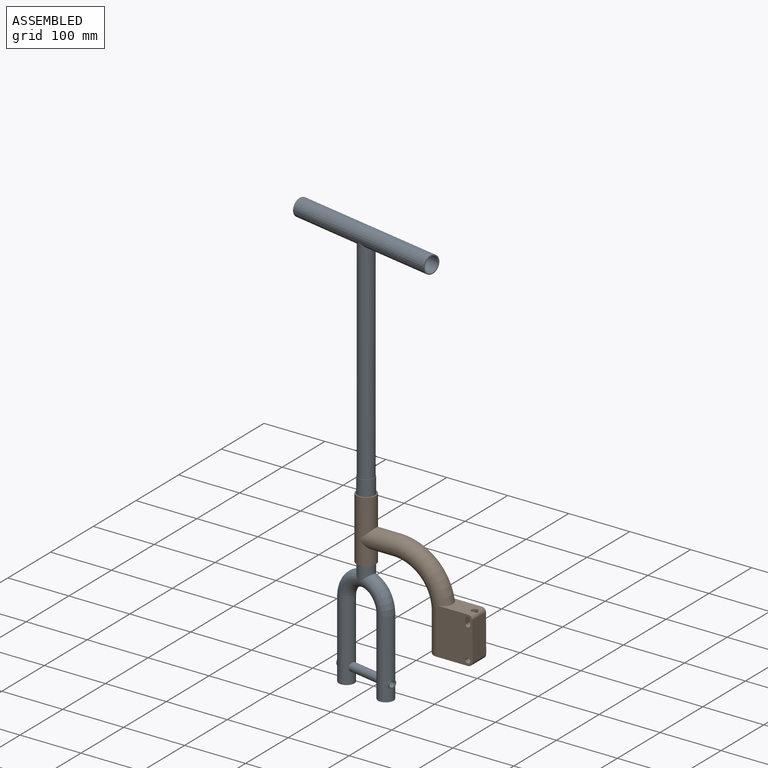
[diagram: assembled view]
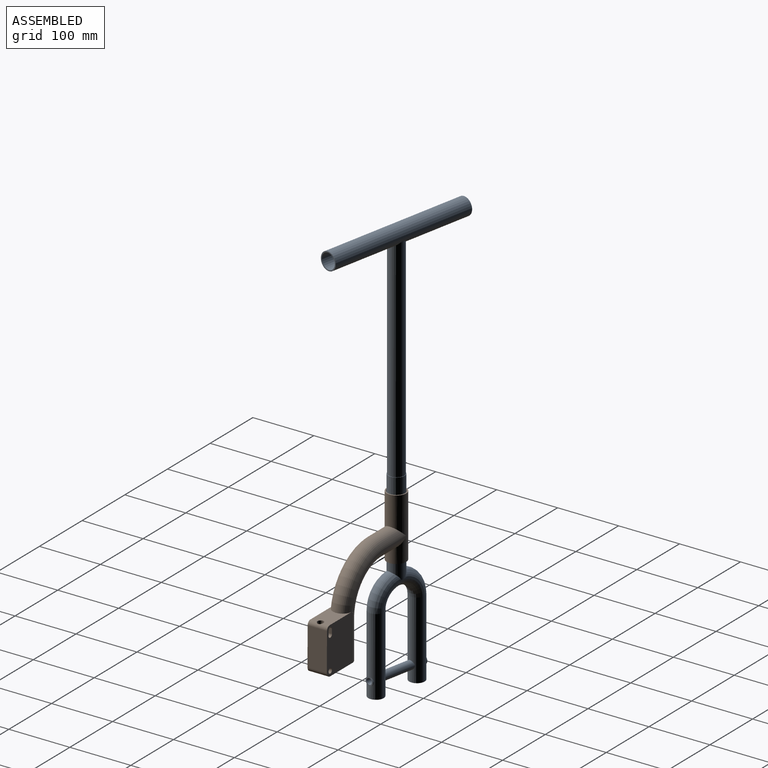
[diagram: assembled view, second angle]
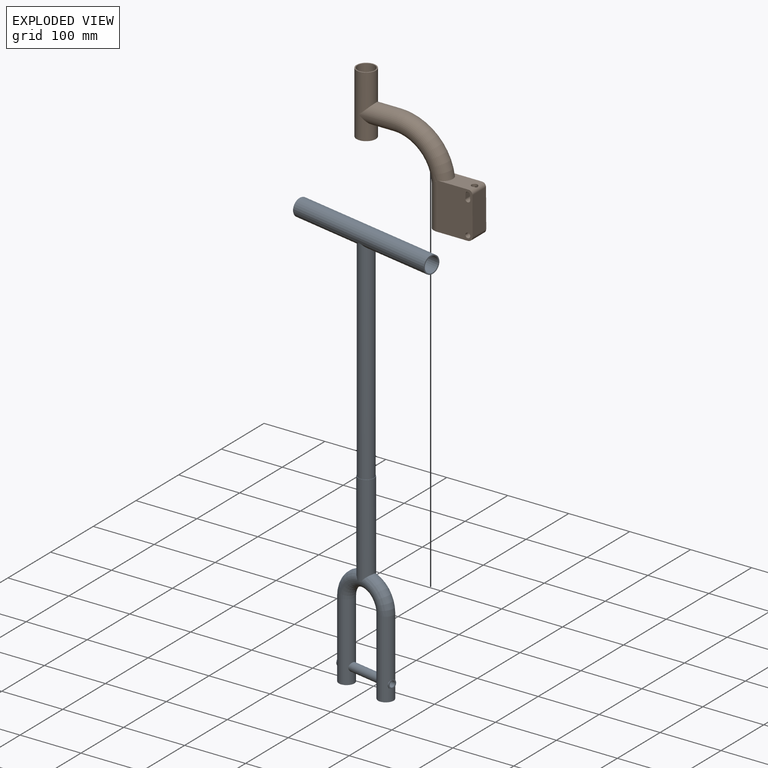
[diagram: exploded view]
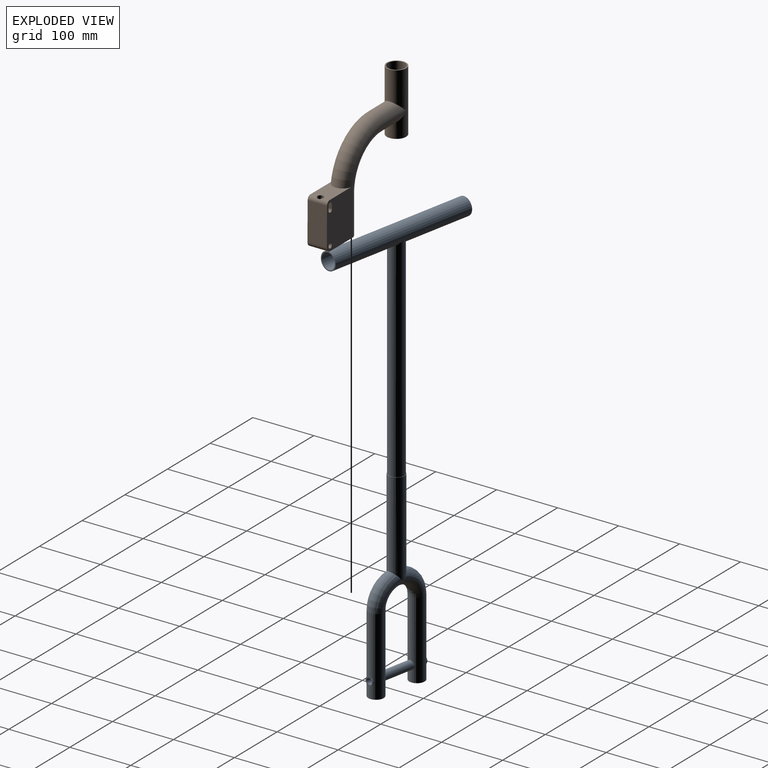
[diagram: exploded view, second angle]
ASSEMBLY  parts=2 mates=2
PART A: 37 faces, bbox 254x29x687.6 mm
  f0: cylinder r=12.7mm len=348.6mm, axis (0,0,1), area 27491.6mm2, adj f4,f32
  f1: cylinder r=13.33mm len=152.4mm, axis (0,0,-1), area 12236.9mm2, adj f2,f3,f4,f9
  f2: plane 8.14x0.64mm, normal (0,0,-1), area 3.5mm2, adj f1,f9
  f3: plane 8.14x0.64mm, normal (0,0,-1), area 3.5mm2, adj f1,f9
  f4: plane 26.67x26.67mm, normal (0,0,1), area 51.9mm2, adj f0,f1
  f5: torus R=38.1mm, axis (0,1,0), area 478mm2, adj f11,f12
  f6: plane 25.4x25.4mm, normal (0,0,-1), area 133.5mm2, adj f8,f13
  f7: cylinder r=12.7mm len=127mm, axis (0,0,-1), area 9813mm2, adj f9,f10,f22,f26,f27
  f8: cylinder r=12.7mm len=127mm, axis (0,0,1), area 9813mm2, adj f6,f9,f22,f23,f25
  f9: torus R=38.1mm, axis (0,1,0), area 8801.7mm2, adj f1,f2,f3,f7,f8
  f10: plane 25.4x25.4mm, normal (0,0,-1), area 133.5mm2, adj f7,f14
  f11: cylinder r=10.9mm len=21.8mm, axis (0,0,1), area 215.9mm2, adj f5,f15
  f12: cylinder r=10.9mm len=21.8mm, axis (0,0,1), area 215.9mm2, adj f5,f16
  f13: cylinder r=10.9mm len=127mm, axis (0,0,1), area 8370.3mm2, adj f6,f17,f21
  f14: cylinder r=10.9mm len=127mm, axis (0,0,-1), area 8371.3mm2, adj f10,f17,f20
  f15: plane 21.8x13.34mm, normal (0,0,-1), area 67.2mm2, adj f11,f17,f18
  f16: plane 21.8x13.34mm, normal (0,0,-1), area 67.2mm2, adj f12,f17,f19
  f17: torus R=38.1mm, axis (0,1,0), area 7465.4mm2, adj f13,f14,f15,f16,f18,f19
  f18: cylinder r=13.33mm len=21.75mm, axis (0,0,-1), area 171.9mm2, adj f15,f17
  f19: cylinder r=13.33mm len=21.75mm, axis (0,0,-1), area 171.9mm2, adj f16,f17
  f20: cylinder r=7mm len=21.8mm, axis (1,0,0), area 850.6mm2, adj f14
  f21: cylinder r=7mm len=21.8mm, axis (1,0,0), area 850.6mm2, adj f13
  f22: cylinder r=7mm len=55.01mm, axis (1,0,0), area 2324.7mm2, adj f7,f8
  f23: cylinder r=7mm len=14mm, axis (1,0,0), area 22.6mm2, adj f8,f24
  f24: plane 14x14mm, normal (-1,0,0), area 75.4mm2, adj f23,f25,f29
  f25: cylinder r=7mm len=14mm, axis (1,0,0), area 22.6mm2, adj f8,f24
  f26: cylinder r=7mm len=14mm, axis (1,0,0), area 22.6mm2, adj f7,f28
  f27: cylinder r=7mm len=14mm, axis (1,0,0), area 22.6mm2, adj f7,f28
  f28: plane 14x14mm, normal (1,0,0), area 75.4mm2, adj f26,f27,f29
  f29: cylinder r=5mm len=101.6mm, axis (1,0,0), area 3191.9mm2, adj f24,f28
  f30: plane 29x29mm, normal (-1,0,0), area 153.8mm2, adj f32,f33
  f31: plane 29x29mm, normal (1,0,0), area 153.8mm2, adj f32,f33
  f32: cylinder r=14.5mm len=254mm, axis (-1,0,0), area 22559.6mm2, adj f0,f30,f31
  f33: cylinder r=12.7mm len=254mm, axis (-1,0,0), area 20268.3mm2, adj f30,f31
  f34: torus R=38.1mm, axis (0,1,0), area 426.7mm2, adj f35
  f35: cylinder r=10.9mm len=491.92mm, axis (0,0,1), area 33324.8mm2, adj f34,f36
  f36: cylinder r=14.5mm len=21.8mm, axis (-1,0,0), area 407.8mm2, adj f35
PART B: 34 faces, bbox 201.7x31.9x203.2 mm
  f0: plane 12.87x7.98mm, normal (1,0,-0.05), area 101mm2, adj f1,f3,f20,f31
  f1: cylinder r=3.62mm len=12.42mm, axis (0,1,0), area 127.8mm2, adj f0,f2,f20,f31
  f2: plane 12.88x7.99mm, normal (-1,0,-0.05), area 101mm2, adj f1,f3,f20,f31
  f3: cylinder r=4mm len=12.88mm, axis (0,1,0), area 153.3mm2, adj f0,f2,f20,f31
  f4: cylinder r=4mm len=31.75mm, axis (0,1,0), area 687.6mm2, adj f20,f21,f31,f32,f33
  f5: cylinder r=12.7mm len=41.28mm, axis (-1,0,0), area 3024.2mm2, adj f23,f28
  f6: plane 3.25x0.08mm, normal (-1,0,0), area 0.2mm2, adj f8,f27
  f7: plane 3.25x0.08mm, normal (-1,0,0), area 0.2mm2, adj f8,f27
  f8: cylinder r=15.96mm len=50.8mm, axis (-1,0,0), area 4097mm2, adj f6,f7,f25,f27
  f9: plane 25.32x11.79mm, normal (0,0,1), area 229.5mm2, adj f10,f23
  f10: plane 76.2x25.4mm, normal (-1,0,0), area 1935.3mm2, adj f9,f11,f22,f23
  f11: plane 66.76x31.92mm, normal (0,0,-1), area 1759.7mm2, adj f10,f12,f20,f21,f22,f24
  f12: cylinder r=8mm len=31.75mm, axis (0,1,0), area 400.4mm2, adj f11,f13,f20,f21
  f13: plane 61.84x31.75mm, normal (1,0,0.01), area 1963.5mm2, adj f12,f14,f20,f21
  f14: cylinder r=6.35mm len=31.75mm, axis (0,1,0), area 288mm2, adj f13,f18,f20,f21,f31
  f15: plane 12.87x7.98mm, normal (1,0,-0.05), area 101mm2, adj f16,f19,f21,f31
  f16: cylinder r=3.62mm len=12.42mm, axis (0,1,0), area 127.8mm2, adj f15,f17,f21,f31
  f17: plane 12.87x7.98mm, normal (-1,0,-0.05), area 101mm2, adj f16,f19,f21,f31
  f18: plane 51.53x31.76mm, normal (0,0,1), area 1231.4mm2, adj f14,f20,f21,f25,f31
  f19: cylinder r=4mm len=12.88mm, axis (0,1,0), area 153.3mm2, adj f15,f17,f21,f31
  f20: plane 76.2x58.22mm, normal (0,-1,0), area 4168.8mm2, adj f0,f1,f2,f3,f4,f11,f12,f13
  f21: plane 76.2x58.22mm, normal (0,1,0), area 4168.8mm2, adj f4,f11,f12,f13,f14,f15,f16,f17
  f22: cylinder r=12.7mm len=63.5mm, axis (0,0,1), area 2533.5mm2, adj f10,f11,f23
  f23: torus R=76.2mm, axis (0,-1,0), area 9051.6mm2, adj f5,f9,f10,f22
  f24: cylinder r=15.96mm len=63.5mm, axis (0,0,1), area 3390.4mm2, adj f11,f20,f21,f25
  f25: torus R=76.2mm, axis (0,-1,0), area 11404mm2, adj f8,f18,f20,f21,f24
  f26: plane 31.75x31.75mm, normal (0,0,-1), area 169.4mm2, adj f27,f30
  f27: cylinder r=15.88mm len=101.6mm, axis (0,0,-1), area 9104mm2, adj f6,f7,f8,f26,f29
  f28: cylinder r=15.88mm len=25.4mm, axis (0,0,-1), area 562.7mm2, adj f5
  f29: plane 31.75x31.75mm, normal (0,0,1), area 169.4mm2, adj f27,f30
  f30: cylinder r=14.08mm len=101.6mm, axis (0,0,-1), area 8985.1mm2, adj f26,f29
  f31: cylinder r=5mm len=68.88mm, axis (0,0,1), area 1848.5mm2, adj f0,f1,f2,f3,f4,f14,f15,f16
  f32: plane 6.15x1.06mm, normal (0,0,1), area 4.4mm2, adj f4,f31
  f33: plane 6.15x1.06mm, normal (0,0,1), area 4.4mm2, adj f4,f31
PLACE A rot(axis=(0,0,-1),11.2deg) t=(12.62,-35.31,-30.18)mm
PLACE B t=(190.42,-35.31,-98.38)mm fixed
MATE revolute B.f27 <-> A.f1  axis (0,0,-1) through (12.62,-35.31,46.02)mm
MATE cylindrical B.f30 <-> A.f11  axis (0,0,-1) through (12.62,-35.31,96.82)mm
